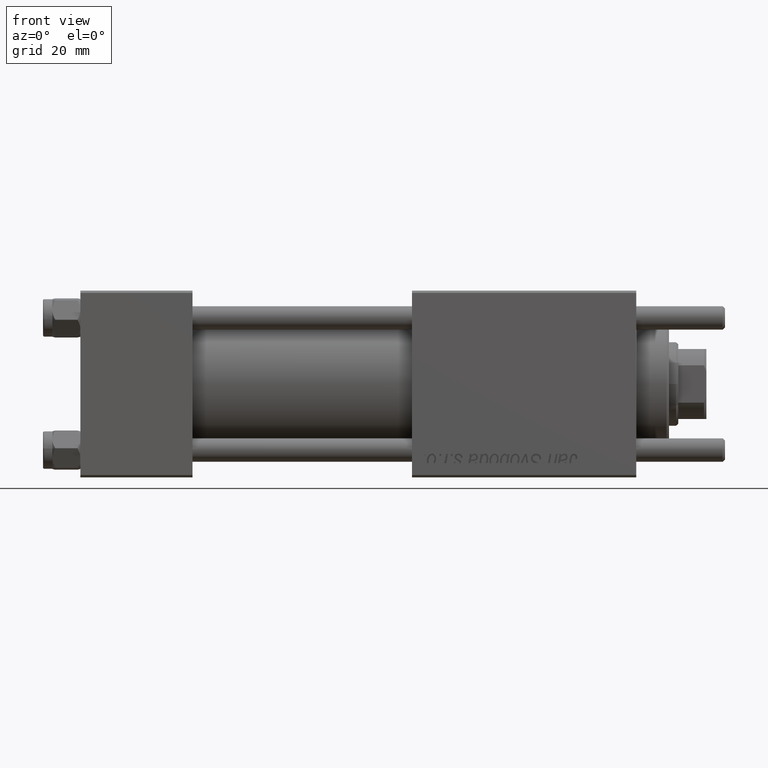
[diagram: clean part render]
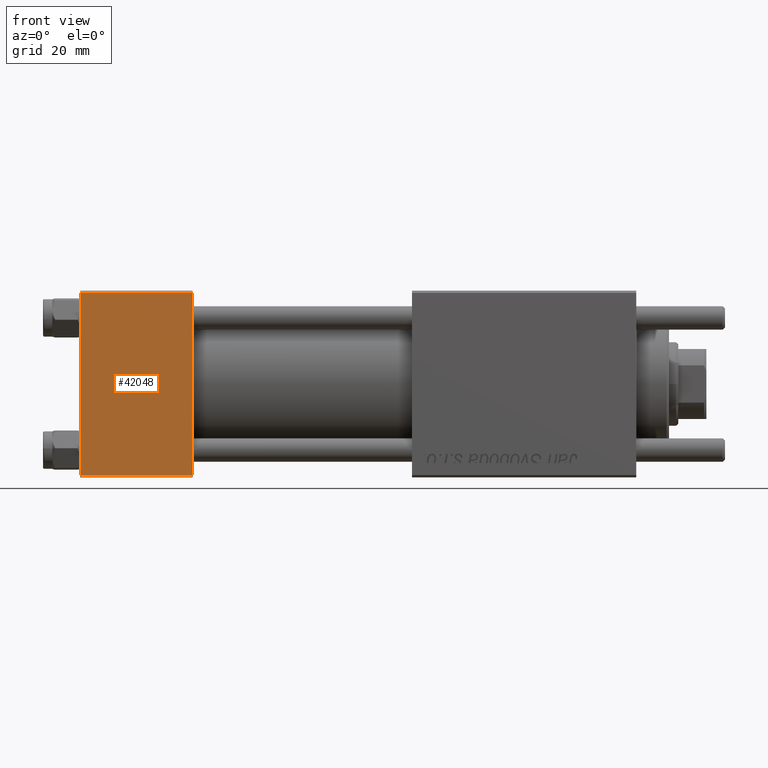
[diagram: same view with one face highlighted and labeled with its STEP entity id]
A machine part, front view. The second image highlights one B-rep face of the part: STEP entity #42048.
In plain terms, the highlighted planar face has unit normal (0, 1, 0).
Its self-contained STEP definition (entity closure, byte-faithful):
#2195 = VECTOR ( 'NONE', #27422, 1000.000000000000000 ) ;
#3250 = AXIS2_PLACEMENT_3D ( 'NONE', #27550, #31588, #5779 ) ;
#3899 = VECTOR ( 'NONE', #40722, 1000.000000000000000 ) ;
#5779 = DIRECTION ( 'NONE',  ( 0.000000000000000000, -8.673617379884036705E-17, 1.000000000000000000 ) ) ;
#6082 = CARTESIAN_POINT ( 'NONE',  ( 24.00000000000000000, -20.00000000000000000, -19.49999999999999645 ) ) ;
#7362 = LINE ( 'NONE', #43157, #44113 ) ;
#10068 = LINE ( 'NONE', #27540, #3899 ) ;
#11007 = EDGE_CURVE ( 'NONE', #36135, #30846, #17312, .T. ) ;
#14267 = ORIENTED_EDGE ( 'NONE', *, *, #11007, .T. ) ;
#14707 = EDGE_LOOP ( 'NONE', ( #14267, #39920, #25707, #33845 ) ) ;
#17312 = LINE ( 'NONE', #24563, #18106 ) ;
#18106 = VECTOR ( 'NONE', #34797, 1000.000000000000000 ) ;
#24135 = VERTEX_POINT ( 'NONE', #40441 ) ;
#24563 = CARTESIAN_POINT ( 'NONE',  ( 0.000000000000000000, -20.00000000000000355, 19.99999999999998934 ) ) ;
#25707 = ORIENTED_EDGE ( 'NONE', *, *, #26323, .F. ) ;
#26323 = EDGE_CURVE ( 'NONE', #24135, #45559, #7362, .T. ) ;
#27205 = EDGE_CURVE ( 'NONE', #24135, #36135, #10068, .T. ) ;
#27422 = DIRECTION ( 'NONE',  ( 1.000000000000000000, 0.000000000000000000, 0.000000000000000000 ) ) ;
#27540 = CARTESIAN_POINT ( 'NONE',  ( 24.00000000000000000, -20.00000000000000355, 19.49999999999998224 ) ) ;
#27550 = CARTESIAN_POINT ( 'NONE',  ( 24.00000000000000000, -20.00000000000000355, 19.99999999999998934 ) ) ;
#30846 = VERTEX_POINT ( 'NONE', #35301 ) ;
#31588 = DIRECTION ( 'NONE',  ( -0.000000000000000000, 1.000000000000000000, 8.673617379884036705E-17 ) ) ;
#32149 = FACE_OUTER_BOUND ( 'NONE', #14707, .T. ) ;
#33845 = ORIENTED_EDGE ( 'NONE', *, *, #27205, .T. ) ;
#34797 = DIRECTION ( 'NONE',  ( 0.000000000000000000, 8.673617379884036705E-17, -1.000000000000000000 ) ) ;
#35301 = CARTESIAN_POINT ( 'NONE',  ( 0.000000000000000000, -20.00000000000000000, -19.49999999999999645 ) ) ;
#36135 = VERTEX_POINT ( 'NONE', #56261 ) ;
#36832 = EDGE_CURVE ( 'NONE', #30846, #45559, #44893, .T. ) ;
#38873 = DIRECTION ( 'NONE',  ( 0.000000000000000000, 8.673617379884036705E-17, -1.000000000000000000 ) ) ;
#39463 = CARTESIAN_POINT ( 'NONE',  ( 24.00000000000000000, -20.00000000000000000, -19.49999999999999645 ) ) ;
#39920 = ORIENTED_EDGE ( 'NONE', *, *, #36832, .T. ) ;
#40166 = PLANE ( 'NONE',  #3250 ) ;
#40441 = CARTESIAN_POINT ( 'NONE',  ( 24.00000000000000000, -20.00000000000000355, 19.49999999999998224 ) ) ;
#40722 = DIRECTION ( 'NONE',  ( -1.000000000000000000, 0.000000000000000000, 0.000000000000000000 ) ) ;
#42048 = ADVANCED_FACE ( 'NONE', ( #32149 ), #40166, .F. ) ;
#43157 = CARTESIAN_POINT ( 'NONE',  ( 24.00000000000000000, -20.00000000000000355, 19.99999999999998934 ) ) ;
#44113 = VECTOR ( 'NONE', #38873, 1000.000000000000000 ) ;
#44893 = LINE ( 'NONE', #39463, #2195 ) ;
#45559 = VERTEX_POINT ( 'NONE', #6082 ) ;
#56261 = CARTESIAN_POINT ( 'NONE',  ( 0.000000000000000000, -20.00000000000000355, 19.49999999999998224 ) ) ;